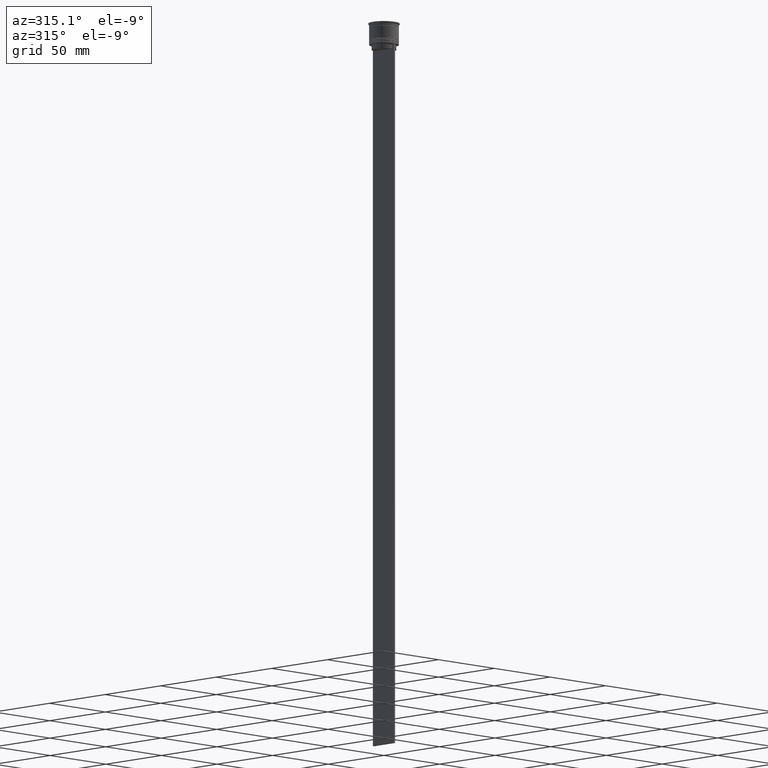
[diagram: clean part render]
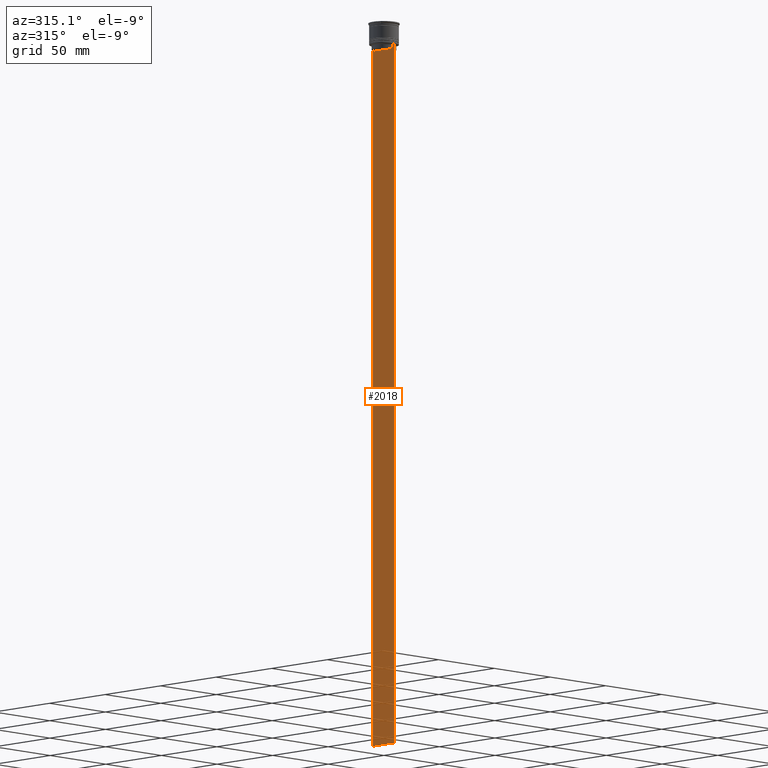
[diagram: same view with one face highlighted and labeled with its STEP entity id]
A machine part, auxiliary view. The second image highlights one B-rep face of the part: STEP entity #2018.
In plain terms, the highlighted planar face has unit normal (-1, 0, 0).
Its self-contained STEP definition (entity closure, byte-faithful):
#56 = CARTESIAN_POINT ( 'NONE',  ( -0.5000000000000000000, -8.385105843100605583, -14.00000000000000178 ) ) ;
#106 = ORIENTED_EDGE ( 'NONE', *, *, #1893, .T. ) ;
#148 = EDGE_CURVE ( 'NONE', #1178, #160, #1181, .T. ) ;
#160 = VERTEX_POINT ( 'NONE', #1005 ) ;
#198 = CARTESIAN_POINT ( 'NONE',  ( -0.5000000000000000000, 7.899999999999994138, -17.00000000000000000 ) ) ;
#225 = CARTESIAN_POINT ( 'NONE',  ( -0.5000000000000000000, 7.884161337770803080, -14.50000000000000000 ) ) ;
#226 = DIRECTION ( 'NONE',  ( -1.000000000000000000, 0.000000000000000000, 0.000000000000000000 ) ) ;
#283 = ORIENTED_EDGE ( 'NONE', *, *, #1187, .F. ) ;
#301 = DIRECTION ( 'NONE',  ( -0.000000000000000000, -0.000000000000000000, 1.000000000000000000 ) ) ;
#306 = ORIENTED_EDGE ( 'NONE', *, *, #1568, .F. ) ;
#342 = CARTESIAN_POINT ( 'NONE',  ( -0.5000000000000000000, 7.884161337770803080, -14.50000000000000000 ) ) ;
#360 = ORIENTED_EDGE ( 'NONE', *, *, #2157, .F. ) ;
#420 = EDGE_CURVE ( 'NONE', #2551, #953, #2091, .T. ) ;
#429 = CARTESIAN_POINT ( 'NONE',  ( -0.5000000000000000000, -9.500000000000001776, -14.00000000000000178 ) ) ;
#432 = PLANE ( 'NONE',  #1967 ) ;
#457 = CARTESIAN_POINT ( 'NONE',  ( -0.5000000000000000000, -9.500000000000001776, 5.026297590440445440 ) ) ;
#463 = VECTOR ( 'NONE', #468, 1000.000000000000000 ) ;
#468 = DIRECTION ( 'NONE',  ( 0.000000000000000000, -1.000000000000000000, 0.000000000000000000 ) ) ;
#469 = EDGE_CURVE ( 'NONE', #2431, #2522, #1925, .T. ) ;
#478 = VERTEX_POINT ( 'NONE', #522 ) ;
#495 = CARTESIAN_POINT ( 'NONE',  ( -0.5000000000000000000, 8.051152811434374001, -14.33334332653219079 ) ) ;
#509 = VECTOR ( 'NONE', #1381, 1000.000000000000000 ) ;
#522 = CARTESIAN_POINT ( 'NONE',  ( -0.5000000000000000000, -9.386692708297204035, -14.00000000000000178 ) ) ;
#532 = CARTESIAN_POINT ( 'NONE',  ( -0.5000000000000000000, 8.385105843100605583, -14.00000000000000178 ) ) ;
#555 = VERTEX_POINT ( 'NONE', #532 ) ;
#577 = DIRECTION ( 'NONE',  ( 0.000000000000000000, 0.000000000000000000, -1.000000000000000000 ) ) ;
#584 = CARTESIAN_POINT ( 'NONE',  ( -0.5000000000000000000, 7.884161337770803080, -17.00000000000000000 ) ) ;
#626 = DIRECTION ( 'NONE',  ( 0.000000000000000000, -1.000000000000000000, 0.000000000000000000 ) ) ;
#656 = ORIENTED_EDGE ( 'NONE', *, *, #729, .F. ) ;
#674 = DIRECTION ( 'NONE',  ( 0.000000000000000000, 0.000000000000000000, -1.000000000000000000 ) ) ;
#729 = EDGE_CURVE ( 'NONE', #555, #1306, #1762, .T. ) ;
#743 = CARTESIAN_POINT ( 'NONE',  ( -0.5000000000000000000, -8.385105843100605583, -14.00000000000000178 ) ) ;
#809 = ORIENTED_EDGE ( 'NONE', *, *, #148, .F. ) ;
#856 = CARTESIAN_POINT ( 'NONE',  ( -0.5000000000000000000, -7.884161337770803080, -17.00000000000000000 ) ) ;
#879 = CARTESIAN_POINT ( 'NONE',  ( -0.5000000000000000000, -8.218133703942523738, -14.16667607853445787 ) ) ;
#953 = VERTEX_POINT ( 'NONE', #2436 ) ;
#967 = ORIENTED_EDGE ( 'NONE', *, *, #420, .F. ) ;
#999 = VERTEX_POINT ( 'NONE', #584 ) ;
#1005 = CARTESIAN_POINT ( 'NONE',  ( -0.5000000000000000000, -9.500000000000001776, -464.0000000000000000 ) ) ;
#1020 = CARTESIAN_POINT ( 'NONE',  ( -0.5000000000000000000, -9.500000000000001776, -14.00000000000000178 ) ) ;
#1031 = DIRECTION ( 'NONE',  ( 0.000000000000000000, -1.000000000000000000, 0.000000000000000000 ) ) ;
#1045 = CARTESIAN_POINT ( 'NONE',  ( -0.5000000000000000000, -8.051152795888546265, -14.33334334204685057 ) ) ;
#1087 = LINE ( 'NONE', #2334, #1919 ) ;
#1106 = VECTOR ( 'NONE', #301, 1000.000000000000000 ) ;
#1178 = VERTEX_POINT ( 'NONE', #1874 ) ;
#1181 = LINE ( 'NONE', #2226, #509 ) ;
#1187 = EDGE_CURVE ( 'NONE', #2522, #1293, #1404, .T. ) ;
#1188 = VECTOR ( 'NONE', #674, 1000.000000000000000 ) ;
#1246 = VECTOR ( 'NONE', #577, 1000.000000000000000 ) ;
#1258 = EDGE_CURVE ( 'NONE', #953, #555, #1979, .T. ) ;
#1275 = DIRECTION ( 'NONE',  ( 0.000000000000000000, 0.000000000000000000, 1.000000000000000000 ) ) ;
#1293 = VERTEX_POINT ( 'NONE', #743 ) ;
#1306 = VERTEX_POINT ( 'NONE', #342 ) ;
#1311 = CARTESIAN_POINT ( 'NONE',  ( -0.5000000000000000000, -7.884161337770803080, 0.000000000000000000 ) ) ;
#1323 = CARTESIAN_POINT ( 'NONE',  ( -0.5000000000000000000, 7.884161337770803080, 0.000000000000000000 ) ) ;
#1329 = VECTOR ( 'NONE', #626, 1000.000000000000000 ) ;
#1351 = CARTESIAN_POINT ( 'NONE',  ( -0.5000000000000000000, 9.499999999999998224, 5.026297590440445440 ) ) ;
#1361 = EDGE_LOOP ( 'NONE', ( #656, #1915, #967, #106, #360, #809, #2339, #1659, #283, #2451, #306, #1506 ) ) ;
#1381 = DIRECTION ( 'NONE',  ( 0.000000000000000000, 0.000000000000000000, -1.000000000000000000 ) ) ;
#1404 = B_SPLINE_CURVE_WITH_KNOTS ( 'NONE', 3,
 ( #1911, #1045, #879, #56 ),
 .UNSPECIFIED., .F., .F.,
 ( 4, 4 ),
 ( 0.03673372442973153046, 0.03744389749832059688 ),
 .UNSPECIFIED. ) ;
#1477 = EDGE_CURVE ( 'NONE', #478, #1178, #1799, .T. ) ;
#1499 = VECTOR ( 'NONE', #1031, 1000.000000000000000 ) ;
#1506 = ORIENTED_EDGE ( 'NONE', *, *, #2465, .F. ) ;
#1523 = DIRECTION ( 'NONE',  ( 0.000000000000000000, -1.000000000000000000, 0.000000000000000000 ) ) ;
#1568 = EDGE_CURVE ( 'NONE', #999, #2431, #2654, .T. ) ;
#1598 = CARTESIAN_POINT ( 'NONE',  ( -0.5000000000000000000, -9.500000000000001776, -14.00000000000000178 ) ) ;
#1599 = EDGE_CURVE ( 'NONE', #1293, #478, #2457, .T. ) ;
#1652 = VERTEX_POINT ( 'NONE', #1748 ) ;
#1657 = DIRECTION ( 'NONE',  ( 0.000000000000000000, -1.000000000000000000, 0.000000000000000000 ) ) ;
#1659 = ORIENTED_EDGE ( 'NONE', *, *, #1599, .F. ) ;
#1696 = CARTESIAN_POINT ( 'NONE',  ( -0.5000000000000000000, 8.385105843100605583, -14.00000000000000178 ) ) ;
#1731 = CARTESIAN_POINT ( 'NONE',  ( -0.5000000000000000000, -7.884161337770803080, -14.50000000000000000 ) ) ;
#1748 = CARTESIAN_POINT ( 'NONE',  ( -0.5000000000000000000, 9.499999999999998224, -464.0000000000000000 ) ) ;
#1762 = B_SPLINE_CURVE_WITH_KNOTS ( 'NONE', 3,
 ( #1696, #2344, #495, #225 ),
 .UNSPECIFIED., .F., .F.,
 ( 4, 4 ),
 ( 0.01426761478740281447, 0.01497538974438914448 ),
 .UNSPECIFIED. ) ;
#1799 = LINE ( 'NONE', #1598, #1499 ) ;
#1874 = CARTESIAN_POINT ( 'NONE',  ( -0.5000000000000000000, -9.500000000000001776, -14.00000000000000178 ) ) ;
#1893 = EDGE_CURVE ( 'NONE', #2551, #1652, #1999, .T. ) ;
#1911 = CARTESIAN_POINT ( 'NONE',  ( -0.5000000000000000000, -7.884161337770803080, -14.50000000000000000 ) ) ;
#1915 = ORIENTED_EDGE ( 'NONE', *, *, #1258, .F. ) ;
#1919 = VECTOR ( 'NONE', #2571, 1000.000000000000000 ) ;
#1925 = LINE ( 'NONE', #1311, #1106 ) ;
#1967 = AXIS2_PLACEMENT_3D ( 'NONE', #457, #226, #1275 ) ;
#1979 = LINE ( 'NONE', #2354, #2583 ) ;
#1999 = LINE ( 'NONE', #1351, #1246 ) ;
#2018 = ADVANCED_FACE ( 'NONE', ( #2259 ), #432, .T. ) ;
#2090 = LINE ( 'NONE', #1323, #1188 ) ;
#2091 = LINE ( 'NONE', #429, #463 ) ;
#2101 = CARTESIAN_POINT ( 'NONE',  ( -0.5000000000000000000, 9.499999999999994671, -14.00000000000000178 ) ) ;
#2157 = EDGE_CURVE ( 'NONE', #160, #1652, #1087, .T. ) ;
#2201 = VECTOR ( 'NONE', #1657, 1000.000000000000000 ) ;
#2226 = CARTESIAN_POINT ( 'NONE',  ( -0.5000000000000000000, -9.500000000000001776, 5.026297590440445440 ) ) ;
#2259 = FACE_OUTER_BOUND ( 'NONE', #1361, .T. ) ;
#2334 = CARTESIAN_POINT ( 'NONE',  ( -0.5000000000000000000, -9.500000000000001776, -464.0000000000000000 ) ) ;
#2339 = ORIENTED_EDGE ( 'NONE', *, *, #1477, .F. ) ;
#2344 = CARTESIAN_POINT ( 'NONE',  ( -0.5000000000000000000, 8.218133718559618828, -14.16667606394327983 ) ) ;
#2354 = CARTESIAN_POINT ( 'NONE',  ( -0.5000000000000000000, -9.500000000000001776, -14.00000000000000178 ) ) ;
#2431 = VERTEX_POINT ( 'NONE', #856 ) ;
#2436 = CARTESIAN_POINT ( 'NONE',  ( -0.5000000000000000000, 9.386692708297204035, -14.00000000000000178 ) ) ;
#2451 = ORIENTED_EDGE ( 'NONE', *, *, #469, .F. ) ;
#2457 = LINE ( 'NONE', #1020, #1329 ) ;
#2465 = EDGE_CURVE ( 'NONE', #1306, #999, #2090, .T. ) ;
#2522 = VERTEX_POINT ( 'NONE', #1731 ) ;
#2551 = VERTEX_POINT ( 'NONE', #2101 ) ;
#2571 = DIRECTION ( 'NONE',  ( 0.000000000000000000, 1.000000000000000000, 0.000000000000000000 ) ) ;
#2583 = VECTOR ( 'NONE', #1523, 1000.000000000000000 ) ;
#2654 = LINE ( 'NONE', #198, #2201 ) ;